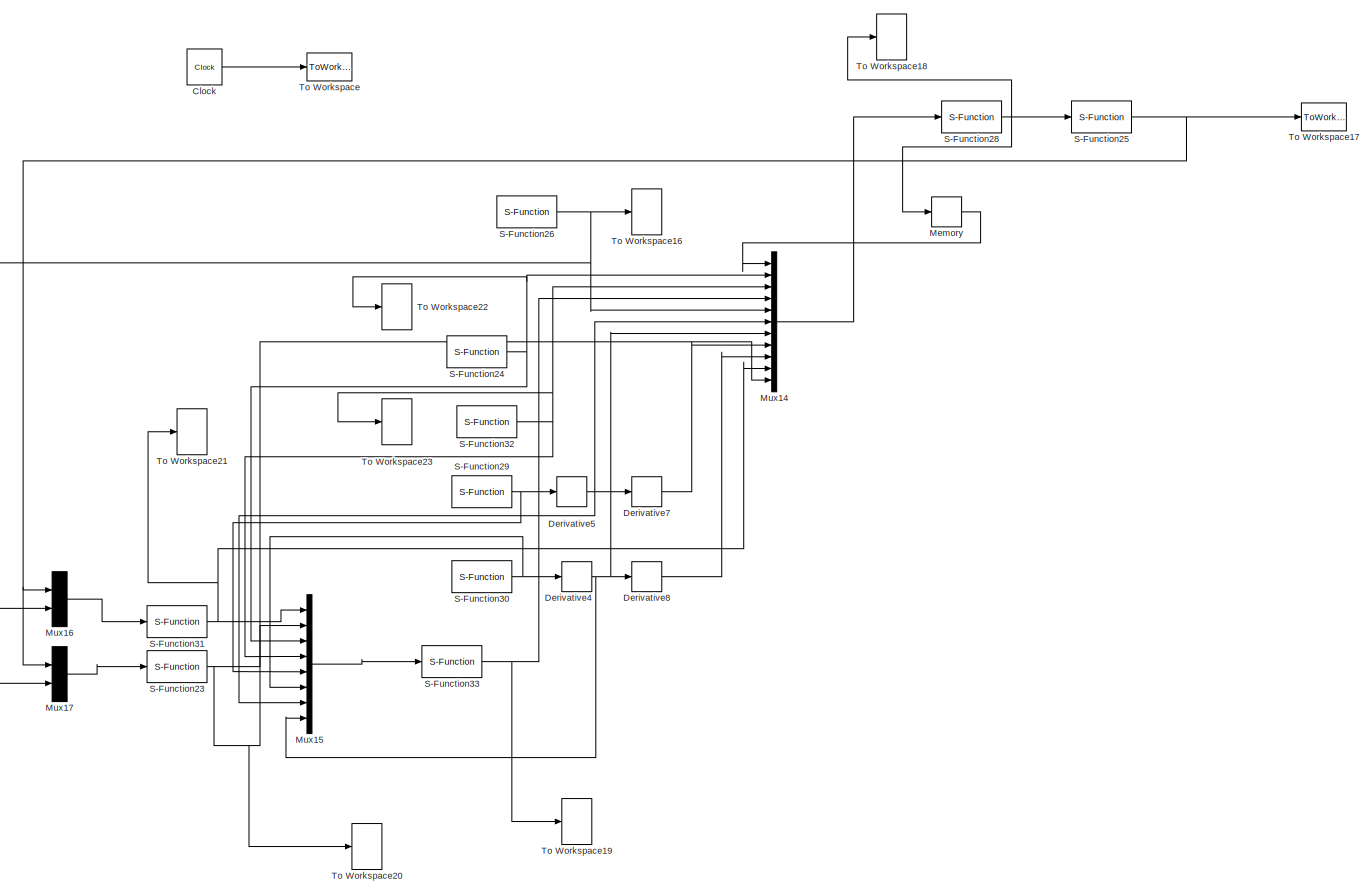
[diagram: root canvas - part 1/1, most of the canvas]
MODEL slx_f51060fdc2b5
KIND model
CONFIG AbsTol = auto
CONFIG EnableMultiTasking = on
CONFIG FixedStep = 0.001
CONFIG MaxStep = auto
CONFIG MinStep = auto
CONFIG RelTol = 1e-3
CONFIG SampleTimeConstraint = Unconstrained
CONFIG Solver = ode4
CONFIG SolverName = ode4
CONFIG StartTime = 0.0
CONFIG StopTime = 15
BLOCK [Clock] Clock
  DisplayTime = on
BLOCK [Derivative] Derivative4
BLOCK [Derivative] Derivative5
BLOCK [Derivative] Derivative7
BLOCK [Derivative] Derivative8
BLOCK [Memory] Memory
BLOCK [Mux] Mux14
  DisplayOption = bar
  Inputs = 11
  Ports = [11, 1]
BLOCK [Mux] Mux15
  DisplayOption = bar
  Inputs = 8
  Ports = [8, 1]
BLOCK [Mux] Mux16
  DisplayOption = bar
  Inputs = 2
  Ports = [2, 1]
BLOCK [Mux] Mux17
  DisplayOption = bar
  Inputs = 2
  Ports = [2, 1]
BLOCK [S-Function] S-Function23
  EnableBusSupport = off
  FunctionName = eivt
  Ports = [1, 1]
  SFcnIsStateOwnerBlock = off
  SFunctionDeploymentMode = off
BLOCK [S-Function] S-Function24
  EnableBusSupport = off
  FunctionName = eix0
  Ports = [0, 1]
  SFcnIsStateOwnerBlock = off
  SFunctionDeploymentMode = off
BLOCK [S-Function] S-Function25
  EnableBusSupport = off
  FunctionName = Plant
  Ports = [1, 1]
  SFcnIsStateOwnerBlock = off
  SFunctionDeploymentMode = off
BLOCK [S-Function] S-Function26
  EnableBusSupport = off
  FunctionName = Leader
  Ports = [0, 1]
  SFcnIsStateOwnerBlock = off
  SFunctionDeploymentMode = off
BLOCK [S-Function] S-Function28
  EnableBusSupport = off
  FunctionName = ul
  Ports = [1, 1]
  SFcnIsStateOwnerBlock = off
  SFunctionDeploymentMode = off
BLOCK [S-Function] S-Function29
  EnableBusSupport = off
  FunctionName = h1
  Ports = [0, 1]
  SFcnIsStateOwnerBlock = off
  SFunctionDeploymentMode = off
BLOCK [S-Function] S-Function30
  EnableBusSupport = off
  FunctionName = h2
  Ports = [0, 1]
  SFcnIsStateOwnerBlock = off
  SFunctionDeploymentMode = off
BLOCK [S-Function] S-Function31
  EnableBusSupport = off
  FunctionName = eixt
  Ports = [1, 1]
  SFcnIsStateOwnerBlock = off
  SFunctionDeploymentMode = off
BLOCK [S-Function] S-Function32
  EnableBusSupport = off
  FunctionName = eiv0
  Ports = [0, 1]
  SFcnIsStateOwnerBlock = off
  SFunctionDeploymentMode = off
BLOCK [S-Function] S-Function33
  EnableBusSupport = off
  FunctionName = si
  Ports = [1, 1]
  SFcnIsStateOwnerBlock = off
  SFunctionDeploymentMode = off
BLOCK [ToWorkspace] To Workspace
  MaxDataPoints = inf
  Ports = [1]
  SampleTime = -1
  Save2DSignal = 3-D array (concatenate along third dimension)
  VariableName = t
BLOCK [ToWorkspace] To Workspace16
  MaxDataPoints = inf
  Ports = [1]
  SampleTime = -1
  Save2DSignal = 3-D array (concatenate along third dimension)
  VariableName = y10
BLOCK [ToWorkspace] To Workspace17
  MaxDataPoints = inf
  Ports = [1]
  SampleTime = -1
  Save2DSignal = 3-D array (concatenate along third dimension)
  VariableName = y
BLOCK [ToWorkspace] To Workspace18
  MaxDataPoints = inf
  Ports = [1]
  SampleTime = -1
  Save2DSignal = 3-D array (concatenate along third dimension)
  VariableName = y11
BLOCK [ToWorkspace] To Workspace19
  MaxDataPoints = inf
  Ports = [1]
  SampleTime = -1
  Save2DSignal = 3-D array (concatenate along third dimension)
  VariableName = y5
BLOCK [ToWorkspace] To Workspace20
  MaxDataPoints = inf
  Ports = [1]
  SampleTime = -1
  Save2DSignal = 3-D array (concatenate along third dimension)
  VariableName = y4
BLOCK [ToWorkspace] To Workspace21
  MaxDataPoints = inf
  Ports = [1]
  SampleTime = -1
  Save2DSignal = 3-D array (concatenate along third dimension)
  VariableName = y3
BLOCK [ToWorkspace] To Workspace22
  MaxDataPoints = inf
  Ports = [1]
  SampleTime = -1
  Save2DSignal = 3-D array (concatenate along third dimension)
  VariableName = y1
BLOCK [ToWorkspace] To Workspace23
  MaxDataPoints = inf
  Ports = [1]
  SampleTime = -1
  Save2DSignal = 3-D array (concatenate along third dimension)
  VariableName = y2
LINE Clock:1 -> To Workspace:1
NET Derivative4:1 -> Derivative8:1, Mux14:7, Mux15:8
NET Derivative5:1 -> Derivative7:1, Mux14:6, Mux15:7
LINE Derivative7:1 -> Mux14:8
LINE Derivative8:1 -> Mux14:9
LINE Memory:1 -> Mux14:1
LINE Mux14:1 -> S-Function28:1
LINE Mux15:1 -> S-Function33:1
LINE Mux16:1 -> S-Function31:1
LINE Mux17:1 -> S-Function23:1
NET S-Function23:1 -> Mux14:11, Mux15:2, To Workspace20:1
NET S-Function24:1 -> Mux14:2, Mux15:3, To Workspace22:1
NET S-Function25:1 -> Mux16:1, Mux17:1, To Workspace17:1
NET S-Function26:1 -> Mux14:5, Mux16:2, Mux17:2, To Workspace16:1
NET S-Function28:1 -> Memory:1, S-Function25:1, To Workspace18:1
NET S-Function29:1 -> Derivative5:1, Mux15:5
NET S-Function30:1 -> Derivative4:1, Mux15:6
NET S-Function31:1 -> Mux14:10, Mux15:1, To Workspace21:1
NET S-Function32:1 -> Mux14:3, Mux15:4, To Workspace23:1
NET S-Function33:1 -> Mux14:4, To Workspace19:1
note: NET lines group one-source signal fan-out (src -> all destinations, sorted); 1:1 wires keep LINE
